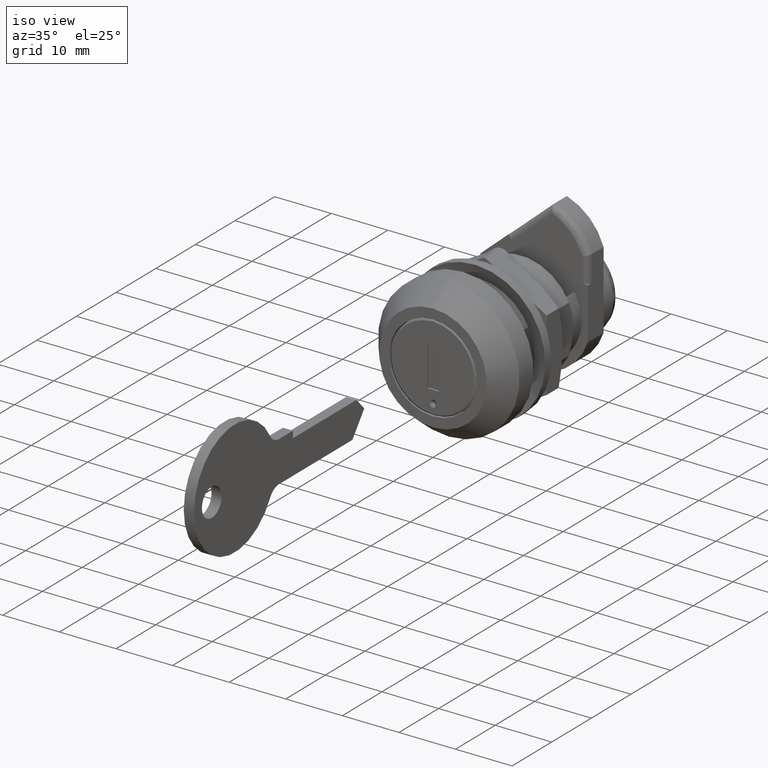
[diagram: clean part render]
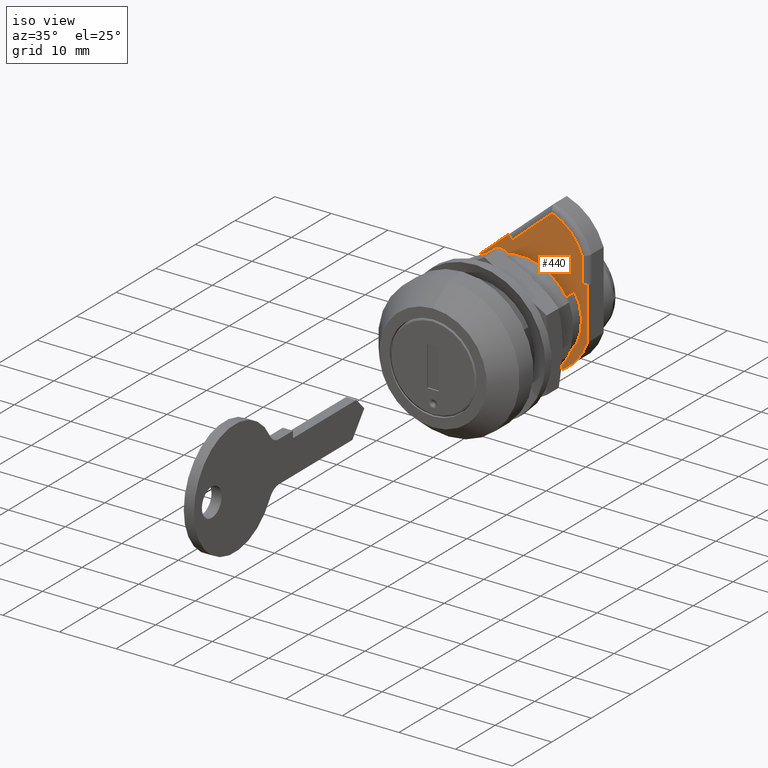
[diagram: same view with one face highlighted and labeled with its STEP entity id]
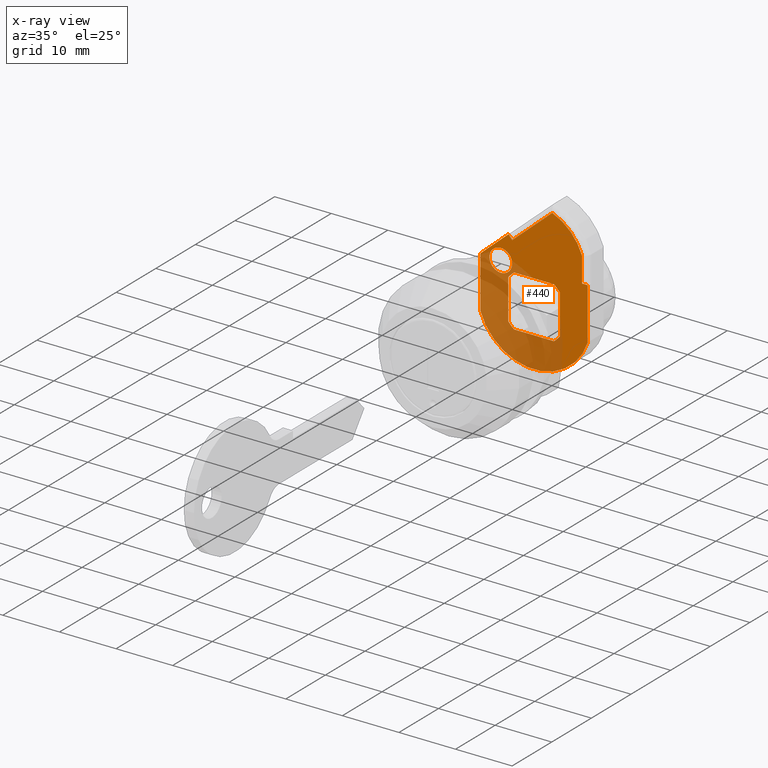
[diagram: x-ray of the same camera — body ghosted, the highlighted face saturated]
A machine part, iso view. The second image highlights one B-rep face of the part: STEP entity #440.
The next image is the same camera in x-ray: the body ghosted, the highlighted face saturated — about 40% of this face is hidden behind the body in this view.
In plain terms, the highlighted planar face has unit normal (-0, -1, 0).
Its self-contained STEP definition (entity closure, byte-faithful):
#440=ADVANCED_FACE('',(#1216,#1217,#1218),#1215,.T.);
#1215=PLANE('',#2461);
#1216=FACE_OUTER_BOUND('',#2462,.T.);
#1217=FACE_BOUND('',#2463,.T.);
#1218=FACE_BOUND('',#2464,.T.);
#2458=CARTESIAN_POINT('',(2.00000000000E+01,-1.84505429557E+01,1.14000000000E+01));
#2459=DIRECTION('',(-1.00000000000E+00,0.00000000000E+00,0.00000000000E+00));
#2460=DIRECTION('',(0.00000000000E+00,1.00000000000E+00,0.00000000000E+00));
#2461=AXIS2_PLACEMENT_3D('',#2458,#2459,#2460);
#2462=EDGE_LOOP('',(#3369,#3370,#3371,#3372,#3373,#3374,#3375,#3376,#3377));
#2463=EDGE_LOOP('',(#3378,#3379,#3380,#3381,#3382,#3383,#3384,#3385));
#2464=EDGE_LOOP('',(#3386,#3387,#3388));
#3369=ORIENTED_EDGE('',*,*,#3983,.T.);
#3370=ORIENTED_EDGE('',*,*,#3972,.F.);
#3371=ORIENTED_EDGE('',*,*,#3993,.F.);
#3372=ORIENTED_EDGE('',*,*,#3973,.F.);
#3373=ORIENTED_EDGE('',*,*,#3977,.F.);
#3374=ORIENTED_EDGE('',*,*,#3987,.F.);
#3375=ORIENTED_EDGE('',*,*,#3968,.F.);
#3376=ORIENTED_EDGE('',*,*,#3981,.T.);
#3377=ORIENTED_EDGE('',*,*,#3994,.T.);
#3378=ORIENTED_EDGE('',*,*,#3965,.T.);
#3379=ORIENTED_EDGE('',*,*,#3962,.F.);
#3380=ORIENTED_EDGE('',*,*,#3959,.T.);
#3381=ORIENTED_EDGE('',*,*,#3956,.F.);
#3382=ORIENTED_EDGE('',*,*,#3953,.T.);
#3383=ORIENTED_EDGE('',*,*,#3950,.F.);
#3384=ORIENTED_EDGE('',*,*,#3947,.T.);
#3385=ORIENTED_EDGE('',*,*,#3943,.F.);
#3386=ORIENTED_EDGE('',*,*,#3995,.T.);
#3387=ORIENTED_EDGE('',*,*,#3996,.T.);
#3388=ORIENTED_EDGE('',*,*,#3997,.T.);
#3943=EDGE_CURVE('',#4984,#4985,#4986,.T.);
#3947=EDGE_CURVE('',#5012,#4985,#5013,.T.);
#3950=EDGE_CURVE('',#5012,#5032,#5033,.T.);
#3953=EDGE_CURVE('',#5052,#5032,#5053,.T.);
#3956=EDGE_CURVE('',#5052,#5072,#5073,.T.);
#3959=EDGE_CURVE('',#5092,#5072,#5093,.T.);
#3962=EDGE_CURVE('',#5092,#5112,#5113,.T.);
#3965=EDGE_CURVE('',#4984,#5112,#5132,.T.);
#3968=EDGE_CURVE('',#5145,#5152,#5153,.T.);
#3972=EDGE_CURVE('',#5173,#5165,#5180,.T.);
#3973=EDGE_CURVE('',#5186,#5187,#5188,.T.);
#3977=EDGE_CURVE('',#5214,#5186,#5215,.T.);
#3981=EDGE_CURVE('',#5145,#5235,#5242,.T.);
#3983=EDGE_CURVE('',#5254,#5165,#5255,.T.);
#3987=EDGE_CURVE('',#5152,#5214,#5281,.T.);
#3993=EDGE_CURVE('',#5187,#5173,#5318,.T.);
#3994=EDGE_CURVE('',#5235,#5254,#5324,.T.);
#3995=EDGE_CURVE('',#5330,#5331,#5332,.T.);
#3996=EDGE_CURVE('',#5331,#5338,#5339,.T.);
#3997=EDGE_CURVE('',#5338,#5330,#5345,.T.);
#4984=VERTEX_POINT('',#7227);
#4985=VERTEX_POINT('',#7228);
#4986=LINE('',#7229,#7230);
#5012=VERTEX_POINT('',#7243);
#5013=CIRCLE('',#7247,5.75000000000E+00);
#5032=VERTEX_POINT('',#7256);
#5033=LINE('',#7257,#7258);
#5052=VERTEX_POINT('',#7267);
#5053=CIRCLE('',#7271,5.75000000000E+00);
#5072=VERTEX_POINT('',#7280);
#5073=LINE('',#7281,#7282);
#5092=VERTEX_POINT('',#7291);
#5093=CIRCLE('',#7295,5.75000000000E+00);
#5112=VERTEX_POINT('',#7304);
#5113=LINE('',#7305,#7306);
#5132=CIRCLE('',#7318,5.75000000000E+00);
#5145=VERTEX_POINT('',#7324);
#5152=VERTEX_POINT('',#7329);
#5153=LINE('',#7330,#7331);
#5165=VERTEX_POINT('',#7336);
#5173=VERTEX_POINT('',#7342);
#5180=LINE('',#7346,#7347);
#5186=VERTEX_POINT('',#7349);
#5187=VERTEX_POINT('',#7350);
#5188=LINE('',#7351,#7352);
#5214=VERTEX_POINT('',#7365);
#5215=CIRCLE('',#7369,1.00000000000E+01);
#5235=VERTEX_POINT('',#7379);
#5242=LINE('',#7409,#7410);
#5254=VERTEX_POINT('',#7415);
#5255=LINE('',#7416,#7417);
#5281=LINE('',#7455,#7456);
#5318=LINE('',#7476,#7477);
#5324=CIRCLE('',#7482,9.00000000000E+00);
#5330=VERTEX_POINT('',#7483);
#5331=VERTEX_POINT('',#7484);
#5332=CIRCLE('',#7488,2.00000000023E+00);
#5338=VERTEX_POINT('',#7489);
#5339=CIRCLE('',#7493,2.00000000023E+00);
#5345=CIRCLE('',#7497,2.00000000023E+00);
#7227=CARTESIAN_POINT('',(2.00000000000E+01,4.55000000000E+00,3.51567916625E+00));
#7228=CARTESIAN_POINT('',(2.00000000000E+01,4.55000000000E+00,-3.51567916625E+00));
#7229=CARTESIAN_POINT('',(2.00000000000E+01,4.55000000000E+00,3.51567916625E+00));
#7230=VECTOR('',#7231,7.03135833250E+00);
#7231=DIRECTION('',(0.00000000000E+00,0.00000000000E+00,-1.00000000000E+00));
#7243=CARTESIAN_POINT('',(2.00000000000E+01,3.51567916625E+00,-4.55000000000E+00));
#7244=CARTESIAN_POINT('',(2.00000000000E+01,2.13162820728E-14,-5.32907051820E-15));
#7245=DIRECTION('',(1.00000000000E+00,-2.88286794234E-15,-2.22752500306E-15));
#7246=DIRECTION('',(-1.97215226305E-31,-6.11422463696E-01,7.91304347826E-01));
#7247=AXIS2_PLACEMENT_3D('',#7244,#7245,#7246);
#7256=CARTESIAN_POINT('',(2.00000000000E+01,-3.51567916625E+00,-4.55000000000E+00));
#7257=CARTESIAN_POINT('',(2.00000000000E+01,3.51567916625E+00,-4.55000000000E+00));
#7258=VECTOR('',#7259,7.03135833250E+00);
#7259=DIRECTION('',(0.00000000000E+00,-1.00000000000E+00,0.00000000000E+00));
#7267=CARTESIAN_POINT('',(2.00000000000E+01,-4.55000000000E+00,-3.51567916625E+00));
#7268=CARTESIAN_POINT('',(2.00000000000E+01,3.01980662698E-14,3.64153152077E-14));
#7269=DIRECTION('',(1.00000000000E+00,-2.22752500306E-15,2.88286794234E-15));
#7270=DIRECTION('',(-0.00000000000E+00,7.91304347826E-01,6.11422463696E-01));
#7271=AXIS2_PLACEMENT_3D('',#7268,#7269,#7270);
#7280=CARTESIAN_POINT('',(2.00000000000E+01,-4.55000000000E+00,3.51567916625E+00));
#7281=CARTESIAN_POINT('',(2.00000000000E+01,-4.55000000000E+00,-3.51567916625E+00));
#7282=VECTOR('',#7283,7.03135833250E+00);
#7283=DIRECTION('',(0.00000000000E+00,0.00000000000E+00,1.00000000000E+00));
#7291=CARTESIAN_POINT('',(2.00000000000E+01,-3.51567916625E+00,4.55000000000E+00));
#7292=CARTESIAN_POINT('',(2.00000000000E+01,-3.01980662698E-14,4.26325641456E-14));
#7293=DIRECTION('',(1.00000000000E+00,6.72669186545E-15,5.19755834047E-15));
#7294=DIRECTION('',(-0.00000000000E+00,6.11422463696E-01,-7.91304347826E-01));
#7295=AXIS2_PLACEMENT_3D('',#7292,#7293,#7294);
#7304=CARTESIAN_POINT('',(2.00000000000E+01,3.51567916625E+00,4.55000000000E+00));
#7305=CARTESIAN_POINT('',(2.00000000000E+01,-3.51567916625E+00,4.55000000000E+00));
#7306=VECTOR('',#7307,7.03135833250E+00);
#7307=DIRECTION('',(0.00000000000E+00,1.00000000000E+00,0.00000000000E+00));
#7315=CARTESIAN_POINT('',(2.00000000000E+01,-5.32907051820E-14,-3.90798504668E-14));
#7316=DIRECTION('',(1.00000000000E+00,2.22752500306E-15,-2.88286794234E-15));
#7317=DIRECTION('',(-1.97215226305E-31,-7.91304347826E-01,-6.11422463696E-01));
#7318=AXIS2_PLACEMENT_3D('',#7315,#7316,#7317);
#7324=CARTESIAN_POINT('',(2.00000000000E+01,-6.00000000000E+00,-8.50000000000E+00));
#7329=CARTESIAN_POINT('',(2.00000000000E+01,-6.00000000000E+00,-9.50000000000E+00));
#7330=CARTESIAN_POINT('',(2.00000000000E+01,-6.00000000000E+00,-8.50000000000E+00));
#7331=VECTOR('',#7332,1.00000000000E+00);
#7332=DIRECTION('',(0.00000000000E+00,0.00000000000E+00,-1.00000000000E+00));
#7336=CARTESIAN_POINT('',(2.00000000000E+01,-9.64300753416E+00,3.84650727434E+00));
#7342=CARTESIAN_POINT('',(2.00000000000E+01,-1.03937210511E+01,4.50713516923E+00));
#7346=CARTESIAN_POINT('',(2.00000000000E+01,-1.03937210511E+01,4.50713516923E+00));
#7347=VECTOR('',#7348,1.00000000000E+00);
#7348=DIRECTION('',(0.00000000000E+00,7.50713516923E-01,-6.60627894892E-01));
#7349=CARTESIAN_POINT('',(2.00000000000E+01,3.12249899920E+00,9.50000000000E+00));
#7350=CARTESIAN_POINT('',(2.00000000000E+01,-6.00000000000E+00,9.50000000000E+00));
#7351=CARTESIAN_POINT('',(2.00000000000E+01,3.12249899920E+00,9.50000000000E+00));
#7352=VECTOR('',#7353,9.12249899920E+00);
#7353=DIRECTION('',(0.00000000000E+00,-1.00000000000E+00,0.00000000000E+00));
#7365=CARTESIAN_POINT('',(2.00000000000E+01,3.12249899920E+00,-9.50000000000E+00));
#7366=CARTESIAN_POINT('',(2.00000000000E+01,-1.77635683940E-15,1.36848976333E-14));
#7367=DIRECTION('',(1.00000000000E+00,3.59719099425E-16,1.18233950310E-16));
#7368=DIRECTION('',(-0.00000000000E+00,-3.12249899920E-01,9.50000000000E-01));
#7369=AXIS2_PLACEMENT_3D('',#7366,#7367,#7368);
#7379=CARTESIAN_POINT('',(2.00000000000E+01,-1.04190398916E+01,-8.50000000000E+00));
#7409=CARTESIAN_POINT('',(2.00000000000E+01,-6.00000000000E+00,-8.50000000000E+00));
#7410=VECTOR('',#7411,4.41903989155E+00);
#7411=DIRECTION('',(0.00000000000E+00,-1.00000000000E+00,8.16015350049E-14));
#7415=CARTESIAN_POINT('',(2.00000000000E+01,-1.58641299597E+01,-3.22295002747E+00));
#7416=CARTESIAN_POINT('',(2.00000000000E+01,-1.58641299597E+01,-3.22295002747E+00));
#7417=VECTOR('',#7418,9.41698416566E+00);
#7418=DIRECTION('',(0.00000000000E+00,6.60627894892E-01,7.50713516923E-01));
#7455=CARTESIAN_POINT('',(2.00000000000E+01,-6.00000000000E+00,-9.50000000000E+00));
#7456=VECTOR('',#7457,9.12249899920E+00);
#7457=DIRECTION('',(0.00000000000E+00,1.00000000000E+00,0.00000000000E+00));
#7476=CARTESIAN_POINT('',(2.00000000000E+01,-6.00000000000E+00,9.50000000000E+00));
#7477=VECTOR('',#7478,6.65082580535E+00);
#7478=DIRECTION('',(0.00000000000E+00,-6.60627894892E-01,-7.50713516923E-01));
#7479=CARTESIAN_POINT('',(2.00000000000E+01,-7.46100000000E+00,-7.99360577730E-15));
#7480=DIRECTION('',(-1.00000000000E+00,4.42503609903E-16,-1.53993332970E-16));
#7481=DIRECTION('',(-0.00000000000E+00,3.28671099061E-01,9.44444444444E-01));
#7482=AXIS2_PLACEMENT_3D('',#7479,#7480,#7481);
#7483=CARTESIAN_POINT('',(2.00000000000E+01,-5.86898628385E+00,3.86898628339E+00));
#7484=CARTESIAN_POINT('',(2.00000000000E+01,-3.88300806160E+00,5.63257456117E+00));
#7485=CARTESIAN_POINT('',(2.00000000000E+01,-5.86898628363E+00,5.86898628362E+00));
#7486=DIRECTION('',(1.00000000000E+00,1.88411095042E-15,-7.10542735659E-15));
#7487=DIRECTION('',(-7.10542735638E-15,-1.07631681358E-10,-1.00000000000E+00));
#7488=AXIS2_PLACEMENT_3D('',#7485,#7486,#7487);
#7489=CARTESIAN_POINT('',(2.00000000000E+01,-7.85500542289E+00,6.10505402688E+00));
#7490=CARTESIAN_POINT('',(2.00000000000E+01,-5.86898628363E+00,5.86898628362E+00));
#7491=DIRECTION('',(1.00000000000E+00,1.88411095042E-15,-7.10542735659E-15));
#7492=DIRECTION('',(-7.10542735638E-15,-1.07631681358E-10,-1.00000000000E+00));
#7493=AXIS2_PLACEMENT_3D('',#7490,#7491,#7492);
#7494=CARTESIAN_POINT('',(2.00000000000E+01,-5.86898628363E+00,5.86898628362E+00));
#7495=DIRECTION('',(1.00000000000E+00,1.88411095042E-15,-7.10542735659E-15));
#7496=DIRECTION('',(-7.10542735638E-15,-1.07631681358E-10,-1.00000000000E+00));
#7497=AXIS2_PLACEMENT_3D('',#7494,#7495,#7496);